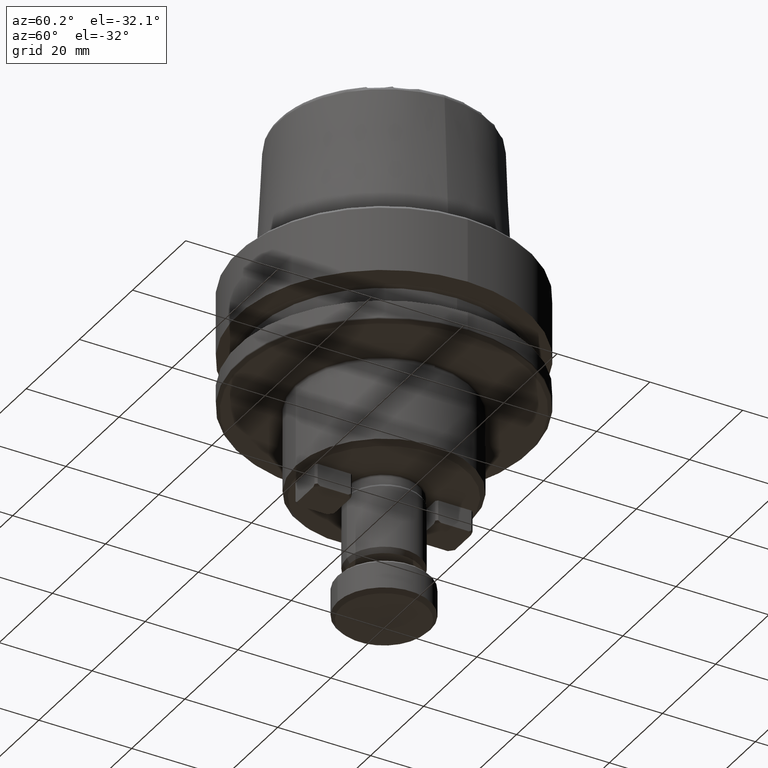
[diagram: clean part render]
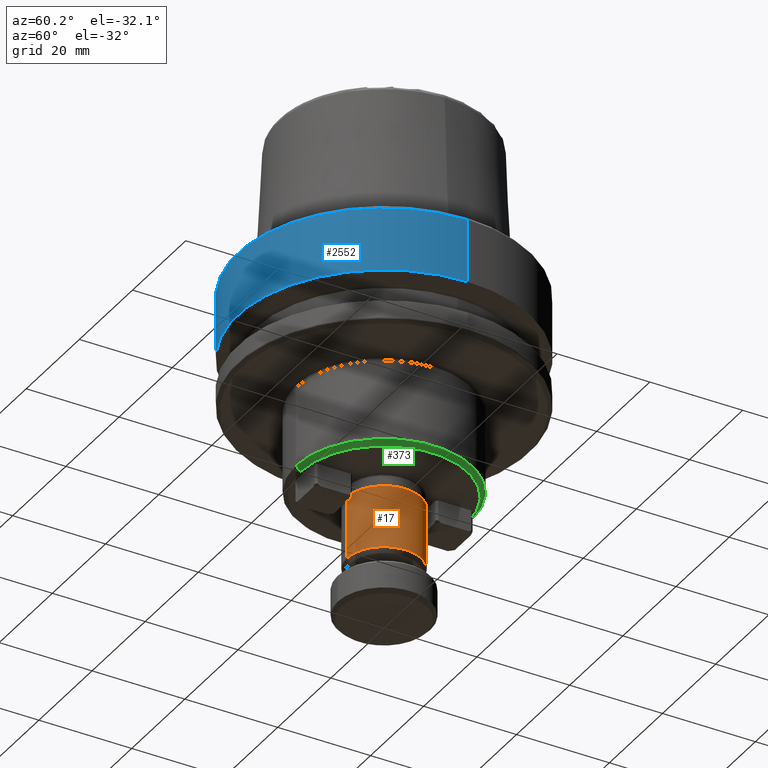
[diagram: same view with three faces highlighted in distinct colors, each labeled with its STEP entity id]
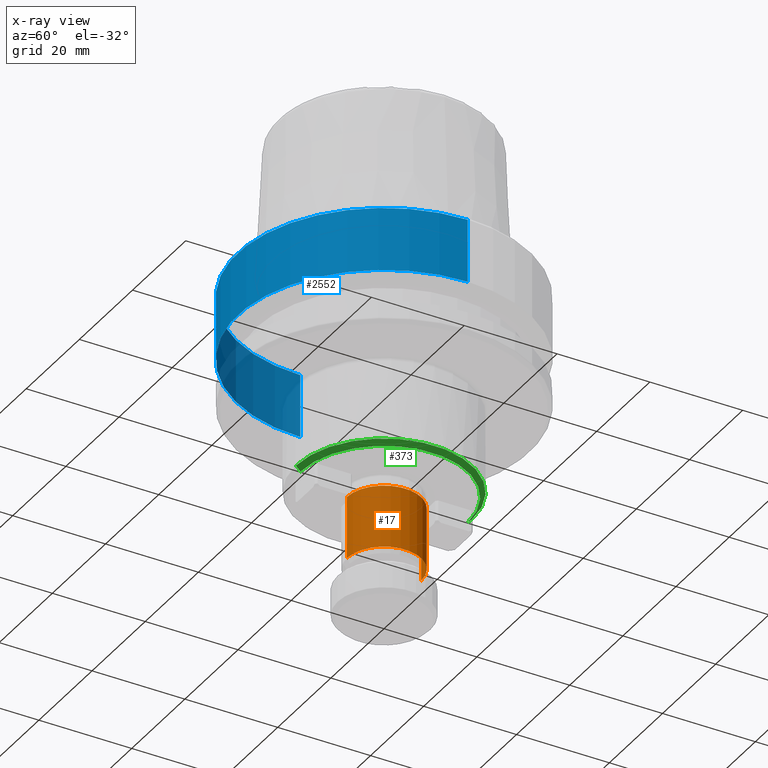
[diagram: x-ray of the same camera — body ghosted, the three highlighted faces saturated]
A machine part, auxiliary view with three faces highlighted in distinct colors.
The next image is the same camera in x-ray (body ghosted, the three faces saturated) — at least one of them is partly hidden behind the body in this view.
Their STEP definitions:

[orange] entity #17 — the highlighted cylindrical surface (partial cylindrical patch) has radius 8 mm, axis along (-0, -0, -1).
#17 = ADVANCED_FACE ( 'NONE', ( #1643 ), #2718, .T. ) ;
#21 = CARTESIAN_POINT ( 'NONE',  ( 0.0000000000000000000, -6.735557395310443400E-015, -62.00000000000000000 ) ) ;
#138 = EDGE_CURVE ( 'NONE', #1963, #2007, #1719, .T. ) ;
#236 = CIRCLE ( 'NONE', #2210, 8.000000000000007100 ) ;
#248 = VECTOR ( 'NONE', #637, 1000.000000000000000 ) ;
#387 = ORIENTED_EDGE ( 'NONE', *, *, #1595, .F. ) ;
#444 = EDGE_CURVE ( 'NONE', #2535, #825, #236, .T. ) ;
#459 = DIRECTION ( 'NONE',  ( -0.0000000000000000000, -1.870988165364012400E-016, -1.000000000000000000 ) ) ;
#493 = AXIS2_PLACEMENT_3D ( 'NONE', #956, #1347, #2538 ) ;
#495 = CARTESIAN_POINT ( 'NONE',  ( 0.0000000000000000000, 8.000000000000000000, -47.50000000000000000 ) ) ;
#520 = CARTESIAN_POINT ( 'NONE',  ( 9.797174393178831600E-016, -8.000000000000007100, -47.50000000000000000 ) ) ;
#637 = DIRECTION ( 'NONE',  ( -0.0000000000000000000, -1.870988165364012400E-016, -1.000000000000000000 ) ) ;
#700 = ORIENTED_EDGE ( 'NONE', *, *, #444, .F. ) ;
#761 = VECTOR ( 'NONE', #2739, 1000.000000000000000 ) ;
#825 = VERTEX_POINT ( 'NONE', #2647 ) ;
#956 = CARTESIAN_POINT ( 'NONE',  ( 0.0000000000000000000, -4.022624555532624500E-015, -47.50000000000000000 ) ) ;
#1114 = CARTESIAN_POINT ( 'NONE',  ( 0.0000000000000000000, 8.000000000000000000, -60.96076951545867200 ) ) ;
#1173 = DIRECTION ( 'NONE',  ( 0.0000000000000000000, 1.000000000000000000, 0.0000000000000000000 ) ) ;
#1203 = CARTESIAN_POINT ( 'NONE',  ( 0.0000000000000000000, -6.541118601544210500E-015, -60.96076951545867200 ) ) ;
#1291 = EDGE_LOOP ( 'NONE', ( #2602, #2455, #700, #387 ) ) ;
#1347 = DIRECTION ( 'NONE',  ( -0.0000000000000000000, -1.870988165364012400E-016, -1.000000000000000000 ) ) ;
#1569 = DIRECTION ( 'NONE',  ( -0.0000000000000000000, -1.870988165364012400E-016, -1.000000000000000000 ) ) ;
#1595 = EDGE_CURVE ( 'NONE', #1963, #2535, #1992, .T. ) ;
#1643 = FACE_OUTER_BOUND ( 'NONE', #1291, .T. ) ;
#1719 = CIRCLE ( 'NONE', #493, 8.000000000000003600 ) ;
#1963 = VERTEX_POINT ( 'NONE', #495 ) ;
#1992 = LINE ( 'NONE', #2526, #761 ) ;
#2007 = VERTEX_POINT ( 'NONE', #520 ) ;
#2210 = AXIS2_PLACEMENT_3D ( 'NONE', #1203, #459, #1173 ) ;
#2392 = EDGE_CURVE ( 'NONE', #2007, #825, #2504, .T. ) ;
#2455 = ORIENTED_EDGE ( 'NONE', *, *, #2392, .T. ) ;
#2504 = LINE ( 'NONE', #2810, #248 ) ;
#2526 = CARTESIAN_POINT ( 'NONE',  ( 0.0000000000000000000, 7.999999999999998200, -62.00000000000000000 ) ) ;
#2535 = VERTEX_POINT ( 'NONE', #1114 ) ;
#2538 = DIRECTION ( 'NONE',  ( 0.0000000000000000000, 1.000000000000000000, 0.0000000000000000000 ) ) ;
#2602 = ORIENTED_EDGE ( 'NONE', *, *, #138, .T. ) ;
#2647 = CARTESIAN_POINT ( 'NONE',  ( 9.797174393178837500E-016, -8.000000000000014200, -60.96076951545867200 ) ) ;
#2718 = CYLINDRICAL_SURFACE ( 'NONE', #2731, 8.000000000000005300 ) ;
#2731 = AXIS2_PLACEMENT_3D ( 'NONE', #21, #1569, #2812 ) ;
#2739 = DIRECTION ( 'NONE',  ( -0.0000000000000000000, -1.870988165364012400E-016, -1.000000000000000000 ) ) ;
#2810 = CARTESIAN_POINT ( 'NONE',  ( 9.797174393178833500E-016, -8.000000000000012400, -62.00000000000000000 ) ) ;
#2812 = DIRECTION ( 'NONE',  ( 0.0000000000000000000, 1.000000000000000000, 0.0000000000000000000 ) ) ;

[blue] entity #2552 — the highlighted cylindrical surface (partial cylindrical patch) has radius 31.5 mm, axis along (-0, -0, 1).
#43 = ORIENTED_EDGE ( 'NONE', *, *, #2683, .T. ) ;
#150 = VECTOR ( 'NONE', #2498, 1000.000000000000000 ) ;
#197 = AXIS2_PLACEMENT_3D ( 'NONE', #2232, #910, #2444 ) ;
#225 = ORIENTED_EDGE ( 'NONE', *, *, #2195, .F. ) ;
#470 = DIRECTION ( 'NONE',  ( 1.000000000000000000, 0.0000000000000000000, 0.0000000000000000000 ) ) ;
#524 = CARTESIAN_POINT ( 'NONE',  ( 31.50000000000000000, 0.0000000000000000000, -14.62250092524070100 ) ) ;
#558 = CIRCLE ( 'NONE', #197, 31.50000000000000000 ) ;
#602 = EDGE_CURVE ( 'NONE', #1355, #1257, #1638, .T. ) ;
#631 = AXIS2_PLACEMENT_3D ( 'NONE', #1998, #1771, #470 ) ;
#860 = CIRCLE ( 'NONE', #2219, 31.50000000000000000 ) ;
#906 = CARTESIAN_POINT ( 'NONE',  ( -31.50000000000000000, 3.857637417314162700E-015, -14.62250092524070100 ) ) ;
#910 = DIRECTION ( 'NONE',  ( -0.0000000000000000000, -0.0000000000000000000, 1.000000000000000000 ) ) ;
#943 = VERTEX_POINT ( 'NONE', #524 ) ;
#1002 = CYLINDRICAL_SURFACE ( 'NONE', #631, 31.50000000000000000 ) ;
#1244 = DIRECTION ( 'NONE',  ( -0.0000000000000000000, -0.0000000000000000000, 1.000000000000000000 ) ) ;
#1257 = VERTEX_POINT ( 'NONE', #2398 ) ;
#1355 = VERTEX_POINT ( 'NONE', #906 ) ;
#1404 = DIRECTION ( 'NONE',  ( -0.0000000000000000000, -0.0000000000000000000, 1.000000000000000000 ) ) ;
#1421 = ORIENTED_EDGE ( 'NONE', *, *, #602, .F. ) ;
#1638 = LINE ( 'NONE', #2481, #2716 ) ;
#1771 = DIRECTION ( 'NONE',  ( -0.0000000000000000000, -0.0000000000000000000, 1.000000000000000000 ) ) ;
#1850 = CARTESIAN_POINT ( 'NONE',  ( 31.50000000000000000, 0.0000000000000000000, -0.9656854249492363700 ) ) ;
#1998 = CARTESIAN_POINT ( 'NONE',  ( 0.0000000000000000000, 0.0000000000000000000, 78.96908074195309300 ) ) ;
#2179 = ORIENTED_EDGE ( 'NONE', *, *, #2549, .T. ) ;
#2195 = EDGE_CURVE ( 'NONE', #1257, #2708, #860, .T. ) ;
#2219 = AXIS2_PLACEMENT_3D ( 'NONE', #2546, #1244, #2755 ) ;
#2232 = CARTESIAN_POINT ( 'NONE',  ( 0.0000000000000000000, 0.0000000000000000000, -14.62250092524070100 ) ) ;
#2287 = CARTESIAN_POINT ( 'NONE',  ( 31.50000000000000000, 0.0000000000000000000, 78.96908074195309300 ) ) ;
#2289 = EDGE_LOOP ( 'NONE', ( #1421, #2179, #43, #225 ) ) ;
#2398 = CARTESIAN_POINT ( 'NONE',  ( -31.50000000000000000, 3.857637417314162700E-015, -0.9656854249492363700 ) ) ;
#2444 = DIRECTION ( 'NONE',  ( 1.000000000000000000, 0.0000000000000000000, 0.0000000000000000000 ) ) ;
#2468 = LINE ( 'NONE', #2287, #150 ) ;
#2481 = CARTESIAN_POINT ( 'NONE',  ( -31.50000000000000000, 3.857637417314162700E-015, 78.96908074195309300 ) ) ;
#2498 = DIRECTION ( 'NONE',  ( -0.0000000000000000000, -0.0000000000000000000, 1.000000000000000000 ) ) ;
#2546 = CARTESIAN_POINT ( 'NONE',  ( 0.0000000000000000000, 0.0000000000000000000, -0.9656854249492363700 ) ) ;
#2549 = EDGE_CURVE ( 'NONE', #1355, #943, #558, .T. ) ;
#2552 = ADVANCED_FACE ( 'NONE', ( #2796 ), #1002, .T. ) ;
#2683 = EDGE_CURVE ( 'NONE', #943, #2708, #2468, .T. ) ;
#2708 = VERTEX_POINT ( 'NONE', #1850 ) ;
#2716 = VECTOR ( 'NONE', #1404, 1000.000000000000000 ) ;
#2755 = DIRECTION ( 'NONE',  ( 1.000000000000000000, 0.0000000000000000000, 0.0000000000000000000 ) ) ;
#2796 = FACE_OUTER_BOUND ( 'NONE', #2289, .T. ) ;

[green] entity #373 — the highlighted conical surface has half-angle 45 deg.
#11 = CARTESIAN_POINT ( 'NONE',  ( 0.0000000000000000000, -3.554877514191621400E-015, -45.00000000000000000 ) ) ;
#36 = DIRECTION ( 'NONE',  ( 0.0000000000000000000, 1.870988165364012400E-016, 1.000000000000000000 ) ) ;
#77 = DIRECTION ( 'NONE',  ( -0.0000000000000000000, -1.870988165364012400E-016, -1.000000000000000000 ) ) ;
#84 = VERTEX_POINT ( 'NONE', #744 ) ;
#292 = AXIS2_PLACEMENT_3D ( 'NONE', #11, #36, #2801 ) ;
#317 = CARTESIAN_POINT ( 'NONE',  ( 2.265596578422603400E-015, 18.00000000000000000, -45.00000000000000000 ) ) ;
#320 = CARTESIAN_POINT ( 'NONE',  ( 0.0000000000000000000, -18.00000000000000700, -45.00000000000000000 ) ) ;
#347 = CIRCLE ( 'NONE', #2062, 18.00000000000000400 ) ;
#373 = ADVANCED_FACE ( 'NONE', ( #1612 ), #2049, .T. ) ;
#434 = DIRECTION ( 'NONE',  ( 0.0000000000000000000, -0.7071067811865436900, 0.7071067811865513500 ) ) ;
#449 = VERTEX_POINT ( 'NONE', #1979 ) ;
#541 = ORIENTED_EDGE ( 'NONE', *, *, #2191, .F. ) ;
#583 = CARTESIAN_POINT ( 'NONE',  ( 0.0000000000000000000, -3.554877514191621400E-015, -45.00000000000000000 ) ) ;
#744 = CARTESIAN_POINT ( 'NONE',  ( 2.326828918379972500E-015, -19.00000000000001100, -43.99999999999997900 ) ) ;
#799 = DIRECTION ( 'NONE',  ( 0.0000000000000000000, 1.000000000000000000, 0.0000000000000000000 ) ) ;
#1012 = EDGE_CURVE ( 'NONE', #1517, #449, #1633, .T. ) ;
#1382 = CARTESIAN_POINT ( 'NONE',  ( 0.0000000000000000000, -3.367778697655218500E-015, -43.99999999999998600 ) ) ;
#1447 = EDGE_CURVE ( 'NONE', #449, #84, #2775, .T. ) ;
#1517 = VERTEX_POINT ( 'NONE', #317 ) ;
#1518 = ORIENTED_EDGE ( 'NONE', *, *, #1012, .T. ) ;
#1605 = DIRECTION ( 'NONE',  ( 0.0000000000000000000, 1.000000000000000000, -3.652049423109066300E-016 ) ) ;
#1612 = FACE_OUTER_BOUND ( 'NONE', #2678, .T. ) ;
#1633 = LINE ( 'NONE', #1641, #2707 ) ;
#1641 = CARTESIAN_POINT ( 'NONE',  ( 2.204364238465235800E-015, 18.00000000000000000, -45.00000000000000000 ) ) ;
#1862 = DIRECTION ( 'NONE',  ( 8.659560562354888500E-017, 0.7071067811865440200, 0.7071067811865511300 ) ) ;
#1925 = LINE ( 'NONE', #1965, #2437 ) ;
#1965 = CARTESIAN_POINT ( 'NONE',  ( 0.0000000000000000000, -18.00000000000000700, -45.00000000000000000 ) ) ;
#1979 = CARTESIAN_POINT ( 'NONE',  ( 0.0000000000000000000, 19.00000000000000400, -43.99999999999999300 ) ) ;
#2049 = CONICAL_SURFACE ( 'NONE', #292, 18.00000000000000400, 0.7853981633974430600 ) ;
#2062 = AXIS2_PLACEMENT_3D ( 'NONE', #583, #2117, #799 ) ;
#2117 = DIRECTION ( 'NONE',  ( -0.0000000000000000000, -1.870988165364012400E-016, -1.000000000000000000 ) ) ;
#2145 = AXIS2_PLACEMENT_3D ( 'NONE', #1382, #77, #1605 ) ;
#2191 = EDGE_CURVE ( 'NONE', #1517, #2717, #347, .T. ) ;
#2415 = EDGE_CURVE ( 'NONE', #2717, #84, #1925, .T. ) ;
#2437 = VECTOR ( 'NONE', #434, 1000.000000000000000 ) ;
#2449 = ORIENTED_EDGE ( 'NONE', *, *, #2415, .F. ) ;
#2678 = EDGE_LOOP ( 'NONE', ( #541, #1518, #2725, #2449 ) ) ;
#2707 = VECTOR ( 'NONE', #1862, 999.9999999999998900 ) ;
#2717 = VERTEX_POINT ( 'NONE', #320 ) ;
#2725 = ORIENTED_EDGE ( 'NONE', *, *, #1447, .T. ) ;
#2775 = CIRCLE ( 'NONE', #2145, 19.00000000000000700 ) ;
#2801 = DIRECTION ( 'NONE',  ( 0.0000000000000000000, -1.000000000000000000, 0.0000000000000000000 ) ) ;